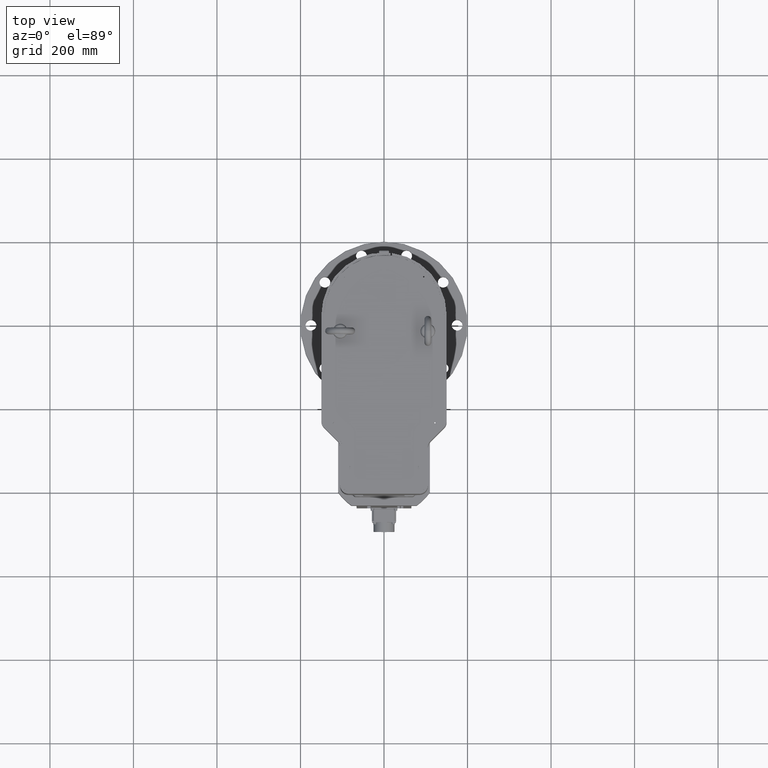
[diagram: clean part render]
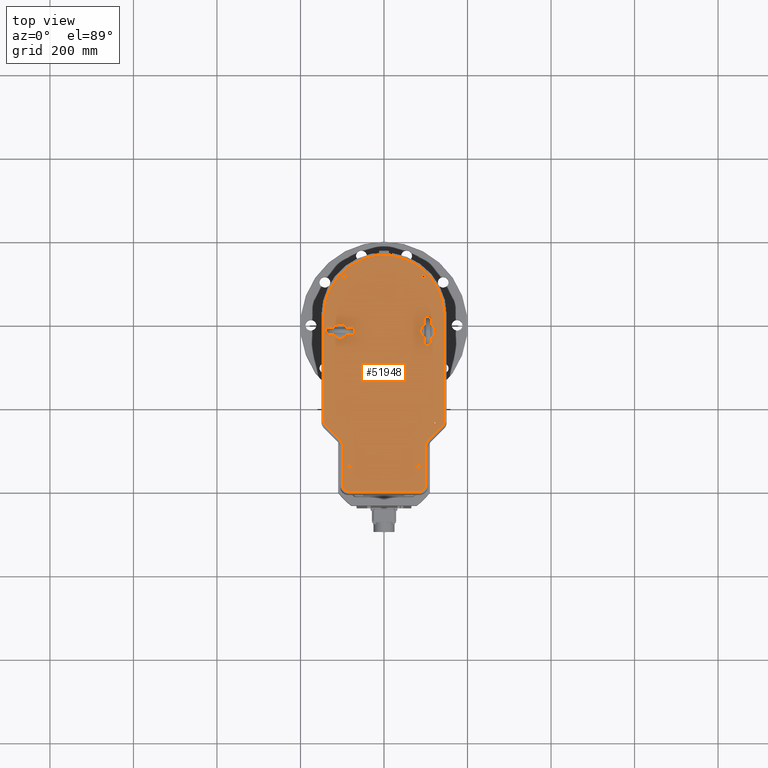
[diagram: same view with one face highlighted and labeled with its STEP entity id]
A machine part, top view. The second image highlights one B-rep face of the part: STEP entity #51948.
In plain terms, the highlighted planar face has unit normal (-0, -0, 1).
Its self-contained STEP definition (entity closure, byte-faithful):
#1009=FACE_BOUND('',#11960,.T.);
#1010=FACE_BOUND('',#11961,.T.);
#1011=FACE_BOUND('',#11962,.T.);
#1012=FACE_BOUND('',#11963,.T.);
#1013=FACE_BOUND('',#11964,.T.);
#1014=FACE_BOUND('',#11965,.T.);
#1015=FACE_BOUND('',#11966,.T.);
#1016=FACE_BOUND('',#11967,.T.);
#5230=CIRCLE('',#55763,17.4615668778988);
#5234=CIRCLE('',#55770,17.4615668778988);
#5246=CIRCLE('',#55786,17.4615668778988);
#5250=CIRCLE('',#55793,17.4615668778988);
#5259=CIRCLE('',#55813,5.);
#5262=CIRCLE('',#55826,5.);
#5265=CIRCLE('',#55839,5.);
#5268=CIRCLE('',#55852,5.);
#5271=CIRCLE('',#55865,5.);
#5274=CIRCLE('',#55878,5.);
#5276=CIRCLE('',#55882,26.);
#5277=CIRCLE('',#55885,26.);
#5278=CIRCLE('',#55888,14.);
#5279=CIRCLE('',#55891,14.);
#5280=CIRCLE('',#55892,14.);
#5281=CIRCLE('',#55893,14.);
#5282=CIRCLE('',#55894,144.);
#6699=PLANE('',#55890);
#8946=FACE_OUTER_BOUND('',#11959,.T.);
#11959=EDGE_LOOP('',(#41682,#41683,#41684,#41685,#41686,#41687,#41688,#41689,
#41690,#41691,#41692,#41693,#41694,#41695));
#11960=EDGE_LOOP('',(#41696,#41697,#41698,#41699));
#11961=EDGE_LOOP('',(#41700,#41701,#41702,#41703));
#11962=EDGE_LOOP('',(#41704));
#11963=EDGE_LOOP('',(#41705));
#11964=EDGE_LOOP('',(#41706));
#11965=EDGE_LOOP('',(#41707));
#11966=EDGE_LOOP('',(#41708));
#11967=EDGE_LOOP('',(#41709));
#15217=LINE('',#84889,#19624);
#15221=LINE('',#84899,#19628);
#15224=LINE('',#84907,#19631);
#15226=LINE('',#84911,#19633);
#15227=LINE('',#84915,#19634);
#15228=LINE('',#84918,#19635);
#15229=LINE('',#84922,#19636);
#19624=VECTOR('',#64059,10.);
#19628=VECTOR('',#64069,10.);
#19631=VECTOR('',#64078,10.);
#19633=VECTOR('',#64082,10.);
#19634=VECTOR('',#64085,10.);
#19635=VECTOR('',#64088,10.);
#19636=VECTOR('',#64091,10.);
#22777=B_SPLINE_CURVE_WITH_KNOTS('',3,(#80049,#80050,#80051,#80052,#80053,
#80054,#80055,#80056,#80057,#80058,#80059,#80060,#80061,#80062,#80063,#80064,
#80065,#80066),.UNSPECIFIED.,.F.,.F.,(4,2,2,2,2,2,2,2,4),(0.,0.219416290672881,
0.346408337456486,0.40081052597961,0.425329061217613,0.449557804542292,
0.555648137668422,0.709186113216317,0.862698249746554),.UNSPECIFIED.);
#22800=B_SPLINE_CURVE_WITH_KNOTS('',3,(#81899,#81900,#81901,#81902,#81903,
#81904,#81905,#81906,#81907,#81908,#81909,#81910,#81911,#81912,#81913,#81914,
#81915,#81916),.UNSPECIFIED.,.F.,.F.,(4,2,2,2,2,2,2,2,4),(0.,0.219416290675718,
0.346408337457255,0.40081052597522,0.425329061216123,0.449557804546451,
0.555648137683096,0.709186113249973,0.862698249781714),.UNSPECIFIED.);
#22801=B_SPLINE_CURVE_WITH_KNOTS('',3,(#82379,#82380,#82381,#82382,#82383,
#82384,#82385,#82386,#82387,#82388,#82389,#82390,#82391,#82392,#82393,#82394,
#82395,#82396),.UNSPECIFIED.,.F.,.F.,(4,2,2,2,2,2,2,2,4),(0.,0.219416290672932,
0.34640833745652,0.400810525979952,0.425329061219597,0.449557804545764,
0.555648137675733,0.709186113229537,0.862698249763127),.UNSPECIFIED.);
#22824=B_SPLINE_CURVE_WITH_KNOTS('',3,(#84229,#84230,#84231,#84232,#84233,
#84234,#84235,#84236,#84237,#84238,#84239,#84240,#84241,#84242,#84243,#84244,
#84245,#84246),.UNSPECIFIED.,.F.,.F.,(4,2,2,2,2,2,2,2,4),(0.,0.219416290675459,
0.346408337456799,0.400810525975086,0.425329061214641,0.449557804541899,
0.555648137663055,0.709186113207877,0.862698249717743),.UNSPECIFIED.);
#25175=VERTEX_POINT('',#80047);
#25176=VERTEX_POINT('',#80048);
#25193=VERTEX_POINT('',#81105);
#25198=VERTEX_POINT('',#81187);
#25200=VERTEX_POINT('',#82377);
#25201=VERTEX_POINT('',#82378);
#25218=VERTEX_POINT('',#83435);
#25223=VERTEX_POINT('',#83517);
#25239=VERTEX_POINT('',#84630);
#25255=VERTEX_POINT('',#84679);
#25271=VERTEX_POINT('',#84728);
#25287=VERTEX_POINT('',#84777);
#25303=VERTEX_POINT('',#84826);
#25319=VERTEX_POINT('',#84875);
#25321=VERTEX_POINT('',#84882);
#25322=VERTEX_POINT('',#84883);
#25323=VERTEX_POINT('',#84888);
#25324=VERTEX_POINT('',#84892);
#25325=VERTEX_POINT('',#84893);
#25326=VERTEX_POINT('',#84898);
#25327=VERTEX_POINT('',#84902);
#25328=VERTEX_POINT('',#84906);
#25329=VERTEX_POINT('',#84910);
#25330=VERTEX_POINT('',#84912);
#25331=VERTEX_POINT('',#84914);
#25332=VERTEX_POINT('',#84917);
#25333=VERTEX_POINT('',#84919);
#25334=VERTEX_POINT('',#84921);
#31028=EDGE_CURVE('',#25175,#25176,#22777,.T.);
#31048=EDGE_CURVE('',#25176,#25193,#5230,.T.);
#31054=EDGE_CURVE('',#25198,#25175,#5234,.T.);
#31063=EDGE_CURVE('',#25193,#25198,#22800,.T.);
#31068=EDGE_CURVE('',#25200,#25201,#22801,.T.);
#31088=EDGE_CURVE('',#25201,#25218,#5246,.T.);
#31094=EDGE_CURVE('',#25223,#25200,#5250,.T.);
#31103=EDGE_CURVE('',#25218,#25223,#22824,.T.);
#31128=EDGE_CURVE('',#25239,#25239,#5259,.T.);
#31151=EDGE_CURVE('',#25255,#25255,#5262,.T.);
#31174=EDGE_CURVE('',#25271,#25271,#5265,.T.);
#31197=EDGE_CURVE('',#25287,#25287,#5268,.T.);
#31220=EDGE_CURVE('',#25303,#25303,#5271,.T.);
#31243=EDGE_CURVE('',#25319,#25319,#5274,.T.);
#31246=EDGE_CURVE('',#25321,#25322,#5276,.T.);
#31249=EDGE_CURVE('',#25323,#25322,#15217,.T.);
#31251=EDGE_CURVE('',#25324,#25325,#5277,.T.);
#31254=EDGE_CURVE('',#25326,#25325,#15221,.T.);
#31256=EDGE_CURVE('',#25326,#25327,#5278,.T.);
#31258=EDGE_CURVE('',#25328,#25327,#15224,.T.);
#31260=EDGE_CURVE('',#25324,#25329,#15226,.T.);
#31261=EDGE_CURVE('',#25330,#25329,#5279,.T.);
#31262=EDGE_CURVE('',#25330,#25331,#15227,.T.);
#31263=EDGE_CURVE('',#25323,#25331,#5280,.T.);
#31264=EDGE_CURVE('',#25321,#25332,#15228,.T.);
#31265=EDGE_CURVE('',#25333,#25332,#5281,.T.);
#31266=EDGE_CURVE('',#25333,#25334,#15229,.T.);
#31267=EDGE_CURVE('',#25334,#25328,#5282,.T.);
#41682=ORIENTED_EDGE('',*,*,#31256,.F.);
#41683=ORIENTED_EDGE('',*,*,#31254,.T.);
#41684=ORIENTED_EDGE('',*,*,#31251,.F.);
#41685=ORIENTED_EDGE('',*,*,#31260,.T.);
#41686=ORIENTED_EDGE('',*,*,#31261,.F.);
#41687=ORIENTED_EDGE('',*,*,#31262,.T.);
#41688=ORIENTED_EDGE('',*,*,#31263,.F.);
#41689=ORIENTED_EDGE('',*,*,#31249,.T.);
#41690=ORIENTED_EDGE('',*,*,#31246,.F.);
#41691=ORIENTED_EDGE('',*,*,#31264,.T.);
#41692=ORIENTED_EDGE('',*,*,#31265,.F.);
#41693=ORIENTED_EDGE('',*,*,#31266,.T.);
#41694=ORIENTED_EDGE('',*,*,#31267,.T.);
#41695=ORIENTED_EDGE('',*,*,#31258,.T.);
#41696=ORIENTED_EDGE('',*,*,#31054,.T.);
#41697=ORIENTED_EDGE('',*,*,#31028,.T.);
#41698=ORIENTED_EDGE('',*,*,#31048,.T.);
#41699=ORIENTED_EDGE('',*,*,#31063,.T.);
#41700=ORIENTED_EDGE('',*,*,#31094,.T.);
#41701=ORIENTED_EDGE('',*,*,#31068,.T.);
#41702=ORIENTED_EDGE('',*,*,#31088,.T.);
#41703=ORIENTED_EDGE('',*,*,#31103,.T.);
#41704=ORIENTED_EDGE('',*,*,#31128,.T.);
#41705=ORIENTED_EDGE('',*,*,#31151,.T.);
#41706=ORIENTED_EDGE('',*,*,#31174,.T.);
#41707=ORIENTED_EDGE('',*,*,#31197,.T.);
#41708=ORIENTED_EDGE('',*,*,#31220,.T.);
#41709=ORIENTED_EDGE('',*,*,#31243,.T.);
#51948=ADVANCED_FACE('',(#8946,#1009,#1010,#1011,#1012,#1013,#1014,#1015,
#1016),#6699,.T.);
#55763=AXIS2_PLACEMENT_3D('',#81120,#63695,#63696);
#55770=AXIS2_PLACEMENT_3D('',#81188,#63709,#63710);
#55786=AXIS2_PLACEMENT_3D('',#83450,#63741,#63742);
#55793=AXIS2_PLACEMENT_3D('',#83518,#63755,#63756);
#55813=AXIS2_PLACEMENT_3D('',#84631,#63814,#63815);
#55826=AXIS2_PLACEMENT_3D('',#84680,#63860,#63861);
#55839=AXIS2_PLACEMENT_3D('',#84729,#63906,#63907);
#55852=AXIS2_PLACEMENT_3D('',#84778,#63952,#63953);
#55865=AXIS2_PLACEMENT_3D('',#84827,#63998,#63999);
#55878=AXIS2_PLACEMENT_3D('',#84876,#64044,#64045);
#55882=AXIS2_PLACEMENT_3D('',#84884,#64053,#64054);
#55885=AXIS2_PLACEMENT_3D('',#84894,#64063,#64064);
#55888=AXIS2_PLACEMENT_3D('',#84903,#64073,#64074);
#55890=AXIS2_PLACEMENT_3D('',#84909,#64080,#64081);
#55891=AXIS2_PLACEMENT_3D('',#84913,#64083,#64084);
#55892=AXIS2_PLACEMENT_3D('',#84916,#64086,#64087);
#55893=AXIS2_PLACEMENT_3D('',#84920,#64089,#64090);
#55894=AXIS2_PLACEMENT_3D('',#84923,#64092,#64093);
#63695=DIRECTION('center_axis',(1.60830197516032E-16,2.44229143635718E-31,
-1.));
#63696=DIRECTION('ref_axis',(2.67466831952861E-33,1.,-4.93038065763132E-31));
#63709=DIRECTION('center_axis',(1.60830197516032E-16,2.44229143635718E-31,
-1.));
#63710=DIRECTION('ref_axis',(2.67466831952861E-33,1.,-4.93038065763132E-31));
#63741=DIRECTION('center_axis',(1.60830197516032E-16,2.44229143635718E-31,
-1.));
#63742=DIRECTION('ref_axis',(-1.,7.10082611832476E-46,-8.97912990179495E-17));
#63755=DIRECTION('center_axis',(1.60830197516032E-16,2.44229143635718E-31,
-1.));
#63756=DIRECTION('ref_axis',(-1.,7.10082611832476E-46,-8.97912990179495E-17));
#63814=DIRECTION('center_axis',(1.60830197516032E-16,2.44229143635718E-31,
-1.));
#63815=DIRECTION('ref_axis',(0.0270353917996528,0.999634476991585,5.15233947198089E-16));
#63860=DIRECTION('center_axis',(1.60830197516032E-16,2.44229143635718E-31,
-1.));
#63861=DIRECTION('ref_axis',(0.0270354654506149,0.999634474999671,5.15233968107412E-16));
#63906=DIRECTION('center_axis',(1.60830197516032E-16,2.44229143635718E-31,
-1.));
#63907=DIRECTION('ref_axis',(0.0270354605413322,0.999634475132445,5.15233966713418E-16));
#63952=DIRECTION('center_axis',(1.60830197516032E-16,2.44229143635718E-31,
-1.));
#63953=DIRECTION('ref_axis',(0.0270354507220386,0.999634475398011,5.15233963925471E-16));
#63998=DIRECTION('center_axis',(1.60830197516032E-16,2.44229143635718E-31,
-1.));
#63999=DIRECTION('ref_axis',(0.0270354703635736,0.999634474866799,5.15233969501233E-16));
#64044=DIRECTION('center_axis',(1.60830197516032E-16,2.44229143635718E-31,
-1.));
#64045=DIRECTION('ref_axis',(0.0270354310827145,0.999634475929163,5.15233958349609E-16));
#64053=DIRECTION('center_axis',(-1.60830197516032E-16,-2.44229143635718E-31,
1.));
#64054=DIRECTION('ref_axis',(-0.92387953251129,0.382683432365082,-1.4858772769481E-16));
#64059=DIRECTION('',(-8.9372953482325E-15,1.,-1.19315783247963E-30));
#64063=DIRECTION('center_axis',(-1.60830197516032E-16,-2.44229143635718E-31,
1.));
#64064=DIRECTION('ref_axis',(0.923879532511283,0.382683432365098,1.48587727694809E-16));
#64069=DIRECTION('',(0.707106781186554,-0.707106781186541,1.13724123283159E-16));
#64073=DIRECTION('center_axis',(1.60830197516032E-16,2.44229143635718E-31,
-1.));
#64074=DIRECTION('ref_axis',(-0.923879532511284,-0.382683432365097,-1.48587727694809E-16));
#64078=DIRECTION('',(9.14225959893253E-15,-1.,1.22612227340344E-30));
#64080=DIRECTION('center_axis',(-1.60830197516032E-16,-2.44229143635718E-31,
1.));
#64081=DIRECTION('ref_axis',(1.,8.9372953482325E-15,1.60830197516032E-16));
#64082=DIRECTION('',(8.9372953482325E-15,-1.,1.19315783247963E-30));
#64083=DIRECTION('center_axis',(1.60830197516032E-16,2.44229143635718E-31,
-1.));
#64084=DIRECTION('ref_axis',(-0.707106781186539,-0.707106781186556,-1.13724123283157E-16));
#64085=DIRECTION('',(1.,8.9372953482325E-15,1.60830197516032E-16));
#64086=DIRECTION('center_axis',(1.60830197516032E-16,2.44229143635718E-31,
-1.));
#64087=DIRECTION('ref_axis',(0.707106781186556,-0.707106781186539,1.13724123283159E-16));
#64088=DIRECTION('',(0.707106781186541,0.707106781186554,1.13724123283157E-16));
#64089=DIRECTION('center_axis',(1.60830197516032E-16,2.44229143635718E-31,
-1.));
#64090=DIRECTION('ref_axis',(0.92387953251129,-0.382683432365083,1.4858772769481E-16));
#64091=DIRECTION('',(-8.9372953482325E-15,1.,-1.19315783247963E-30));
#64092=DIRECTION('center_axis',(-1.60830197516032E-16,-2.44229143635718E-31,
1.));
#64093=DIRECTION('ref_axis',(1.,8.9372953482325E-15,1.60830197516032E-16));
#80047=CARTESIAN_POINT('',(100.789242704712,-21.0537366703871,1423.60000000014));
#80048=CARTESIAN_POINT('',(109.210757217638,-21.0537363681683,1423.60000003184));
#80049=CARTESIAN_POINT('Ctrl Pts',(100.789215561663,-21.0537418925154,1423.6));
#80050=CARTESIAN_POINT('Ctrl Pts',(101.499016126157,-20.8773586957013,1423.6));
#80051=CARTESIAN_POINT('Ctrl Pts',(102.190356342979,-20.7266611527252,1423.6));
#80052=CARTESIAN_POINT('Ctrl Pts',(103.32796485747,-20.5582170702529,1423.6));
#80053=CARTESIAN_POINT('Ctrl Pts',(103.741008284917,-20.5133335519161,1423.6));
#80054=CARTESIAN_POINT('Ctrl Pts',(104.340114736699,-20.4760443286882,1423.6));
#80055=CARTESIAN_POINT('Ctrl Pts',(104.519633546735,-20.4684049362413,1423.6));
#80056=CARTESIAN_POINT('Ctrl Pts',(104.780728431221,-20.4625590599595,1423.6));
#80057=CARTESIAN_POINT('Ctrl Pts',(104.861825145442,-20.4614786243809,1423.6));
#80058=CARTESIAN_POINT('Ctrl Pts',(105.023135393735,-20.4607931753833,1423.6));
#80059=CARTESIAN_POINT('Ctrl Pts',(105.103315591041,-20.4611710136995,1423.6));
#80060=CARTESIAN_POINT('Ctrl Pts',(105.534770487871,-20.4670848968376,1423.6));
#80061=CARTESIAN_POINT('Ctrl Pts',(105.883548051317,-20.4857325820418,1423.6));
#80062=CARTESIAN_POINT('Ctrl Pts',(106.737351980379,-20.5629123210279,1423.6));
#80063=CARTESIAN_POINT('Ctrl Pts',(107.232679626506,-20.6346717844968,1423.6));
#80064=CARTESIAN_POINT('Ctrl Pts',(108.229260705359,-20.8200483785501,1423.6));
#80065=CARTESIAN_POINT('Ctrl Pts',(108.717240302672,-20.9310987102978,1423.6));
#80066=CARTESIAN_POINT('Ctrl Pts',(109.210787796705,-21.0537432710381,1423.6));
#81105=CARTESIAN_POINT('',(109.210757296597,-54.9462633295568,1423.60000000085));
#81120=CARTESIAN_POINT('Origin',(104.999999999998,-37.9999999999862,1423.6));
#81187=CARTESIAN_POINT('',(100.789242782358,-54.946263631804,1423.60000003184));
#81188=CARTESIAN_POINT('Origin',(104.999999999998,-37.9999999999862,1423.6));
#81899=CARTESIAN_POINT('Ctrl Pts',(109.21078443833,-54.9462581074576,1423.6));
#81900=CARTESIAN_POINT('Ctrl Pts',(108.500983873827,-55.1226413042739,1423.6));
#81901=CARTESIAN_POINT('Ctrl Pts',(107.809643656995,-55.2733388472516,1423.6));
#81902=CARTESIAN_POINT('Ctrl Pts',(106.672035142501,-55.4417829297223,1423.6));
#81903=CARTESIAN_POINT('Ctrl Pts',(106.258991715055,-55.4866664480584,1423.6));
#81904=CARTESIAN_POINT('Ctrl Pts',(105.659885263289,-55.5239556712841,1423.6));
#81905=CARTESIAN_POINT('Ctrl Pts',(105.480366453265,-55.5315950637305,1423.6));
#81906=CARTESIAN_POINT('Ctrl Pts',(105.21927156878,-55.5374409400126,1423.6));
#81907=CARTESIAN_POINT('Ctrl Pts',(105.138174854561,-55.5385213755912,1423.6));
#81908=CARTESIAN_POINT('Ctrl Pts',(104.976864606263,-55.5392068245891,1423.6));
#81909=CARTESIAN_POINT('Ctrl Pts',(104.896684408953,-55.5388289862729,1423.6));
#81910=CARTESIAN_POINT('Ctrl Pts',(104.465229512131,-55.5329151031346,1423.6));
#81911=CARTESIAN_POINT('Ctrl Pts',(104.116451948691,-55.5142674179317,1423.6));
#81912=CARTESIAN_POINT('Ctrl Pts',(103.262648019593,-55.4370876789422,1423.6));
#81913=CARTESIAN_POINT('Ctrl Pts',(102.767320373438,-55.365328215468,1423.6));
#81914=CARTESIAN_POINT('Ctrl Pts',(101.770739294582,-55.1799516214096,1423.6));
#81915=CARTESIAN_POINT('Ctrl Pts',(101.282759697292,-55.0689012896665,1423.6));
#81916=CARTESIAN_POINT('Ctrl Pts',(100.78921220329,-54.9462567289341,1423.6));
#82377=CARTESIAN_POINT('',(-121.946263329599,-42.210757295274,1423.60000000014));
#82378=CARTESIAN_POINT('',(-121.946263631818,-33.7892427823482,1423.60000003184));
#82379=CARTESIAN_POINT('Ctrl Pts',(-121.946258107472,-42.2107844383213,
1423.6));
#82380=CARTESIAN_POINT('Ctrl Pts',(-122.122641304286,-41.5009838738275,
1423.6));
#82381=CARTESIAN_POINT('Ctrl Pts',(-122.273338847262,-40.8096436570052,
1423.6));
#82382=CARTESIAN_POINT('Ctrl Pts',(-122.441782929734,-39.6720351425154,
1423.6));
#82383=CARTESIAN_POINT('Ctrl Pts',(-122.486666448071,-39.2589917150673,
1423.6));
#82384=CARTESIAN_POINT('Ctrl Pts',(-122.523955671299,-38.6598852632847,
1423.6));
#82385=CARTESIAN_POINT('Ctrl Pts',(-122.531595063745,-38.4803664532486,
1423.6));
#82386=CARTESIAN_POINT('Ctrl Pts',(-122.537440940027,-38.2192715687583,
1423.6));
#82387=CARTESIAN_POINT('Ctrl Pts',(-122.538521375606,-38.1381748545398,
1423.6));
#82388=CARTESIAN_POINT('Ctrl Pts',(-122.539206824603,-37.9768646062511,
1423.6));
#82389=CARTESIAN_POINT('Ctrl Pts',(-122.538828986287,-37.8966844089441,
1423.6));
#82390=CARTESIAN_POINT('Ctrl Pts',(-122.532915103149,-37.4652295121142,
1423.6));
#82391=CARTESIAN_POINT('Ctrl Pts',(-122.514267417945,-37.1164519486698,
1423.6));
#82392=CARTESIAN_POINT('Ctrl Pts',(-122.437087678958,-36.2626480196044,
1423.6));
#82393=CARTESIAN_POINT('Ctrl Pts',(-122.365328215489,-35.7673203734755,
1423.6));
#82394=CARTESIAN_POINT('Ctrl Pts',(-122.179951621435,-34.7707392946216,
1423.6));
#82395=CARTESIAN_POINT('Ctrl Pts',(-122.068901289688,-34.2827596973118,
1423.6));
#82396=CARTESIAN_POINT('Ctrl Pts',(-121.946256728949,-33.7892122032815,
1423.6));
#83435=CARTESIAN_POINT('',(-88.0537366704298,-33.7892427033888,1423.60000000085));
#83450=CARTESIAN_POINT('Origin',(-105.,-37.999999999988,1423.6));
#83517=CARTESIAN_POINT('',(-88.0537363681826,-42.2107572176278,1423.60000003184));
#83518=CARTESIAN_POINT('Origin',(-105.,-37.999999999988,1423.6));
#84229=CARTESIAN_POINT('Ctrl Pts',(-88.0537418925287,-33.7892155616568,
1423.6));
#84230=CARTESIAN_POINT('Ctrl Pts',(-87.8773586957127,-34.4990161261588,
1423.6));
#84231=CARTESIAN_POINT('Ctrl Pts',(-87.7266611527349,-35.1903563429915,
1423.6));
#84232=CARTESIAN_POINT('Ctrl Pts',(-87.5582170702644,-36.3279648574848,
1423.6));
#84233=CARTESIAN_POINT('Ctrl Pts',(-87.5133335519283,-36.7410082849305,
1423.6));
#84234=CARTESIAN_POINT('Ctrl Pts',(-87.4760443287025,-37.3401147366978,
1423.6));
#84235=CARTESIAN_POINT('Ctrl Pts',(-87.4684049362562,-37.519633546721,1423.6));
#84236=CARTESIAN_POINT('Ctrl Pts',(-87.4625590599742,-37.7807284311997,
1423.6));
#84237=CARTESIAN_POINT('Ctrl Pts',(-87.4614786243955,-37.8618251454208,
1423.6));
#84238=CARTESIAN_POINT('Ctrl Pts',(-87.4607931753976,-38.0231353937184,
1423.6));
#84239=CARTESIAN_POINT('Ctrl Pts',(-87.4611710137137,-38.1033155910296,
1423.6));
#84240=CARTESIAN_POINT('Ctrl Pts',(-87.4670848968519,-38.5347704878534,
1423.6));
#84241=CARTESIAN_POINT('Ctrl Pts',(-87.4857325820549,-38.8835480512929,
1423.6));
#84242=CARTESIAN_POINT('Ctrl Pts',(-87.5629123210443,-39.7373519803927,
1423.6));
#84243=CARTESIAN_POINT('Ctrl Pts',(-87.6346717845186,-40.2326796265473,
1423.6));
#84244=CARTESIAN_POINT('Ctrl Pts',(-87.8200483785769,-41.2292607054038,
1423.6));
#84245=CARTESIAN_POINT('Ctrl Pts',(-87.93109871032,-41.7172403026941,1423.6));
#84246=CARTESIAN_POINT('Ctrl Pts',(-88.0537432710522,-42.2107877966947,
1423.6));
#84630=CARTESIAN_POINT('',(-95.1351769589988,87.001827615053,1423.6));
#84631=CARTESIAN_POINT('Origin',(-95.0000000000005,92.0000000000109,1423.6));
#84679=CARTESIAN_POINT('',(94.8648226727447,87.0018276250143,1423.6));
#84680=CARTESIAN_POINT('Origin',(94.9999999999978,92.0000000000126,1423.6));
#84728=CARTESIAN_POINT('',(-122.135177302708,-262.498172375648,1423.6));
#84729=CARTESIAN_POINT('Origin',(-122.000000000001,-257.499999999986,1423.6));
#84777=CARTESIAN_POINT('',(121.864822746387,-262.498172376974,1423.6));
#84778=CARTESIAN_POINT('Origin',(121.999999999997,-257.499999999984,1423.6));
#84826=CARTESIAN_POINT('',(81.8648226481791,-367.498172374318,1423.6));
#84827=CARTESIAN_POINT('Origin',(81.9999999999969,-362.499999999984,1423.6));
#84875=CARTESIAN_POINT('',(-82.1351771554152,-367.498172379631,1423.6));
#84876=CARTESIAN_POINT('Origin',(-82.0000000000017,-362.499999999985,1423.6));
#84882=CARTESIAN_POINT('',(106.615223689151,-297.384776310837,1423.6));
#84883=CARTESIAN_POINT('',(99.0000000000015,-315.769552621687,1423.6));
#84884=CARTESIAN_POINT('Origin',(125.000000000001,-315.769552621687,1423.6));
#84888=CARTESIAN_POINT('',(99.0000000000023,-407.499999999987,1423.6));
#84889=CARTESIAN_POINT('',(99.0000000000024,-421.499999999987,1423.6));
#84892=CARTESIAN_POINT('',(-98.9999999999986,-315.769552621689,1423.6));
#84893=CARTESIAN_POINT('',(-106.615223689148,-297.384776310839,1423.6));
#84894=CARTESIAN_POINT('Origin',(-124.999999999999,-315.769552621689,1423.6));
#84898=CARTESIAN_POINT('',(-139.899494936611,-264.100505063377,1423.6));
#84899=CARTESIAN_POINT('',(-143.999999999999,-259.999999999989,1423.6));
#84902=CARTESIAN_POINT('',(-143.999999999999,-254.201010126765,1423.6));
#84903=CARTESIAN_POINT('Origin',(-129.999999999999,-254.201010126765,1423.6));
#84906=CARTESIAN_POINT('',(-144.000000000001,1.12781063193043E-11,1423.6));
#84907=CARTESIAN_POINT('',(-144.000000000001,1.12781063193043E-11,1423.6));
#84909=CARTESIAN_POINT('Origin',(-1.34406374918803E-13,-138.749999999987,
1423.6));
#84910=CARTESIAN_POINT('',(-98.9999999999977,-407.499999999988,1423.6));
#84911=CARTESIAN_POINT('',(-98.9999999999986,-304.999999999988,1423.6));
#84912=CARTESIAN_POINT('',(-84.9999999999976,-421.499999999988,1423.6));
#84913=CARTESIAN_POINT('Origin',(-84.9999999999977,-407.499999999988,1423.6));
#84914=CARTESIAN_POINT('',(85.0000000000024,-421.499999999987,1423.6));
#84915=CARTESIAN_POINT('',(-98.9999999999976,-421.499999999988,1423.6));
#84916=CARTESIAN_POINT('Origin',(85.0000000000023,-407.499999999987,1423.6));
#84917=CARTESIAN_POINT('',(139.899494936613,-264.100505063374,1423.6));
#84918=CARTESIAN_POINT('',(99.0000000000014,-304.999999999986,1423.6));
#84919=CARTESIAN_POINT('',(144.000000000001,-254.201010126763,1423.6));
#84920=CARTESIAN_POINT('Origin',(130.000000000001,-254.201010126763,1423.6));
#84921=CARTESIAN_POINT('',(143.999999999999,1.38698109479893E-11,1423.6));
#84922=CARTESIAN_POINT('',(144.000000000001,-259.999999999986,1423.6));
#84923=CARTESIAN_POINT('Origin',(-1.36557432028906E-12,1.25828404178438E-11,
1423.6));